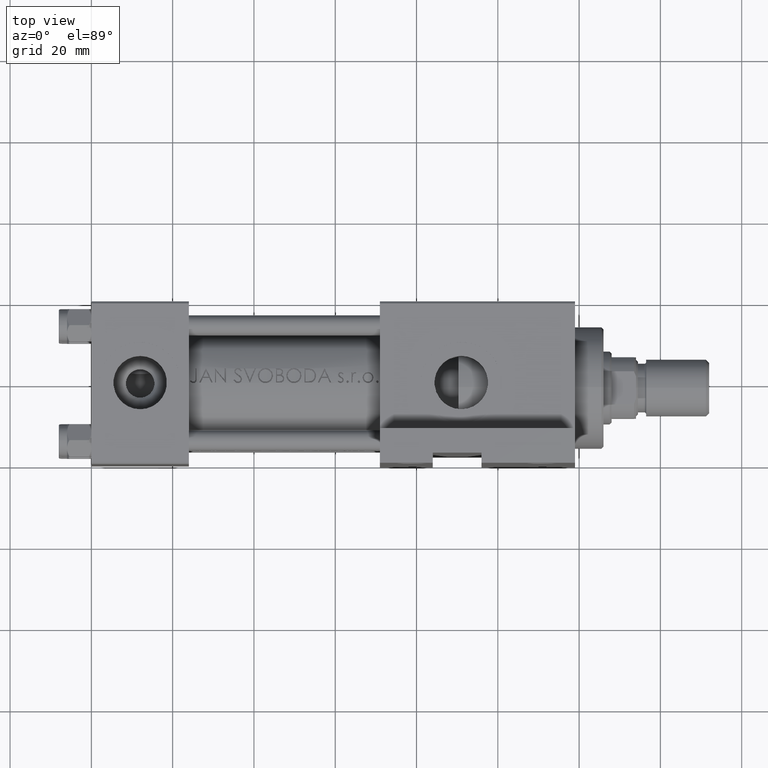
[diagram: clean part render]
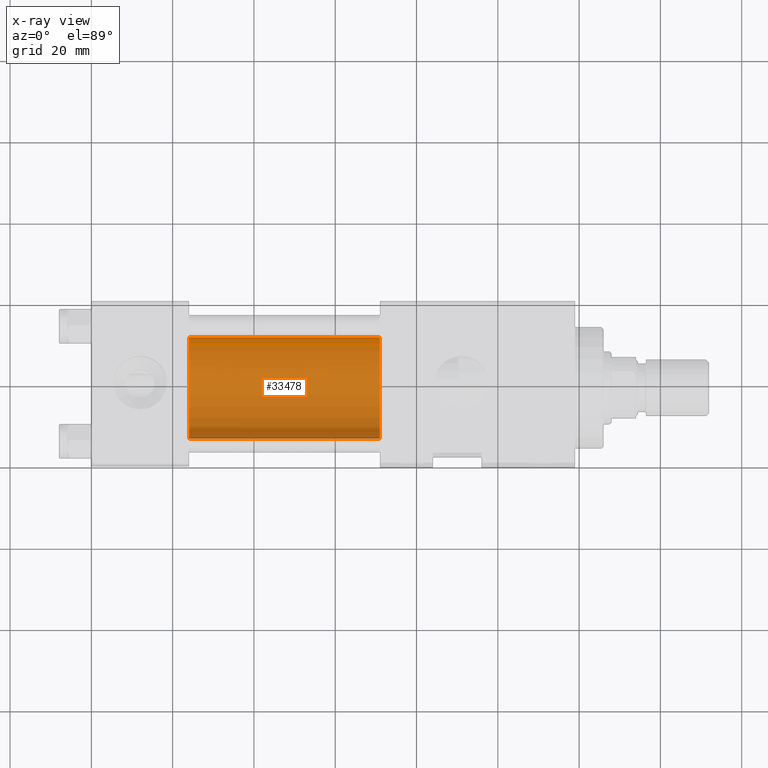
[diagram: x-ray — body ghosted, one internal face saturated and labeled with its STEP entity id]
A machine part, top view, then the same camera in x-ray: the body is ghosted and one INTERNAL B-rep face — a face not visible from any outside direction — is saturated and labeled: STEP entity #33478.
In plain terms, the highlighted cylindrical surface (partial cylindrical patch) has radius 12.5 mm, axis along (-1, -0, 0).
Its self-contained STEP definition (entity closure, byte-faithful):
#7864 = ORIENTED_EDGE ( 'NONE', *, *, #30015, .T. ) ;
#8114 = AXIS2_PLACEMENT_3D ( 'NONE', #22459, #34785, #37812 ) ;
#8688 = CARTESIAN_POINT ( 'NONE',  ( 24.00000000000000000, 0.000000000000000000, 11.49999999999998934 ) ) ;
#8729 = LINE ( 'NONE', #34669, #13951 ) ;
#9465 = DIRECTION ( 'NONE',  ( -1.000000000000000000, -0.000000000000000000, -0.000000000000000000 ) ) ;
#10209 = DIRECTION ( 'NONE',  ( 0.000000000000000000, 0.000000000000000000, 1.000000000000000000 ) ) ;
#11104 = ORIENTED_EDGE ( 'NONE', *, *, #13016, .F. ) ;
#13016 = EDGE_CURVE ( 'NONE', #48043, #48085, #8729, .T. ) ;
#13951 = VECTOR ( 'NONE', #24076, 1000.000000000000000 ) ;
#16832 = ORIENTED_EDGE ( 'NONE', *, *, #49611, .F. ) ;
#18204 = ORIENTED_EDGE ( 'NONE', *, *, #35648, .T. ) ;
#18558 = CARTESIAN_POINT ( 'NONE',  ( 71.00000000000001421, 0.000000000000000000, -1.000000000000007772 ) ) ;
#18808 = DIRECTION ( 'NONE',  ( 1.000000000000000000, 0.000000000000000000, 0.000000000000000000 ) ) ;
#21522 = CARTESIAN_POINT ( 'NONE',  ( 24.00000000000000000, 1.530808498934191127E-15, -13.50000000000000533 ) ) ;
#22459 = CARTESIAN_POINT ( 'NONE',  ( 24.00000000000000000, 0.000000000000000000, -1.000000000000007772 ) ) ;
#24076 = DIRECTION ( 'NONE',  ( -1.000000000000000000, -0.000000000000000000, -0.000000000000000000 ) ) ;
#24721 = VERTEX_POINT ( 'NONE', #8688 ) ;
#24962 = LINE ( 'NONE', #48351, #33984 ) ;
#25952 = EDGE_LOOP ( 'NONE', ( #11104, #7864, #18204, #16832 ) ) ;
#27169 = CARTESIAN_POINT ( 'NONE',  ( 71.00000000000001421, 0.000000000000000000, 11.49999999999998934 ) ) ;
#27887 = CIRCLE ( 'NONE', #31913, 12.49999999999999645 ) ;
#28591 = FACE_OUTER_BOUND ( 'NONE', #25952, .T. ) ;
#29330 = CYLINDRICAL_SURFACE ( 'NONE', #33875, 12.49999999999999645 ) ;
#30015 = EDGE_CURVE ( 'NONE', #48043, #48770, #27887, .T. ) ;
#30374 = DIRECTION ( 'NONE',  ( 0.000000000000000000, 0.000000000000000000, -1.000000000000000000 ) ) ;
#31913 = AXIS2_PLACEMENT_3D ( 'NONE', #18558, #18808, #30374 ) ;
#32758 = DIRECTION ( 'NONE',  ( -1.000000000000000000, -0.000000000000000000, -0.000000000000000000 ) ) ;
#33478 = ADVANCED_FACE ( 'NONE', ( #28591 ), #29330, .F. ) ;
#33875 = AXIS2_PLACEMENT_3D ( 'NONE', #36391, #9465, #10209 ) ;
#33984 = VECTOR ( 'NONE', #32758, 1000.000000000000000 ) ;
#34669 = CARTESIAN_POINT ( 'NONE',  ( 71.00000000000001421, 1.530808498934191127E-15, -13.50000000000000533 ) ) ;
#34785 = DIRECTION ( 'NONE',  ( 1.000000000000000000, 0.000000000000000000, 0.000000000000000000 ) ) ;
#35648 = EDGE_CURVE ( 'NONE', #48770, #24721, #24962, .T. ) ;
#36391 = CARTESIAN_POINT ( 'NONE',  ( 71.00000000000001421, 0.000000000000000000, -1.000000000000007772 ) ) ;
#37812 = DIRECTION ( 'NONE',  ( 0.000000000000000000, 0.000000000000000000, -1.000000000000000000 ) ) ;
#37868 = CIRCLE ( 'NONE', #8114, 12.49999999999999645 ) ;
#47956 = CARTESIAN_POINT ( 'NONE',  ( 71.00000000000001421, 1.530808498934191127E-15, -13.50000000000000533 ) ) ;
#48043 = VERTEX_POINT ( 'NONE', #47956 ) ;
#48085 = VERTEX_POINT ( 'NONE', #21522 ) ;
#48351 = CARTESIAN_POINT ( 'NONE',  ( 71.00000000000001421, 0.000000000000000000, 11.49999999999998934 ) ) ;
#48770 = VERTEX_POINT ( 'NONE', #27169 ) ;
#49611 = EDGE_CURVE ( 'NONE', #48085, #24721, #37868, .T. ) ;